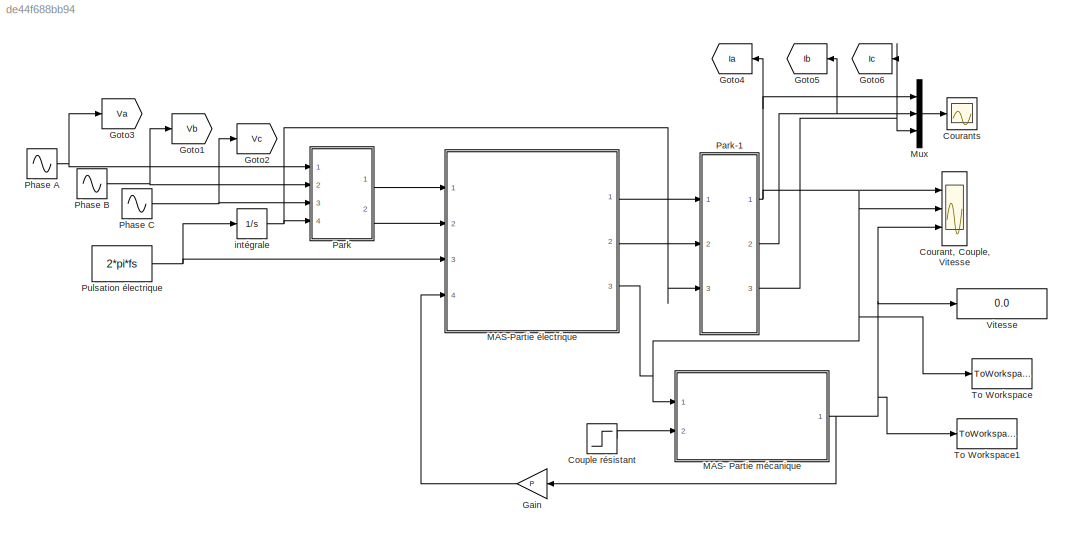
MODEL slx_de44f688bb94
KIND model
CONFIG AbsTol = auto
CONFIG EnableMultiTasking = off
CONFIG FixedStep = 0.0001
CONFIG MaxStep = auto
CONFIG MinStep = auto
CONFIG RelTol = 1e-3
CONFIG SampleTimeConstraint = Unconstrained
CONFIG SolverName = FixedStepAuto
CONFIG StartTime = 0.0
CONFIG StopTime = 1.5
BLOCK [Step] Couple résistant
  After = 20
  SampleTime = 0
BLOCK [Scope] Courant, Couple, Vitesse
  Floating = off
  NumInputPorts = 3
  Ports = [3]
  ScopeSpecificationString = Simulink.scopes.TimeScopeBlockCfg('CurrentConfiguration', extmgr.ConfigurationSet(extmgr.Configuration('Core','General UI',true,'FigureColor',[1 1 1]),extmgr.Configuration('Core','Source UI',true),extmgr.Configuration('Sources','WiredSimulink',true,'DataLoggingVariableName','ScopeData1'),extmgr.Configuration('Visuals','Time Domain',true,'SerializedDisplays',{struct('MinYLimReal','-49.07838','MaxYL...<+3304ch>
BLOCK [Scope] Courants
  Floating = off
  NumInputPorts = 1
  Ports = [1]
  ScopeSpecificationString = Simulink.scopes.TimeScopeBlockCfg('CurrentConfiguration', extmgr.ConfigurationSet(extmgr.Configuration('Core','General UI',true),extmgr.Configuration('Core','Source UI',true),extmgr.Configuration('Sources','WiredSimulink',true),extmgr.Configuration('Visuals','Time Domain',true,'SerializedDisplays',{struct('MinYLimReal','-50.04312','MaxYLimReal','53.36277','YLabelReal','','MinYLimMag','0.00000','Ma...<+1500ch>
BLOCK [Gain] Gain
  Gain = P
BLOCK [Goto] Goto1
  GotoTag = Vb
BLOCK [Goto] Goto2
  GotoTag = Vc
BLOCK [Goto] Goto3
  GotoTag = Va
BLOCK [Goto] Goto4
  GotoTag = Ia
BLOCK [Goto] Goto5
  GotoTag = Ib
BLOCK [Goto] Goto6
  GotoTag = Ic
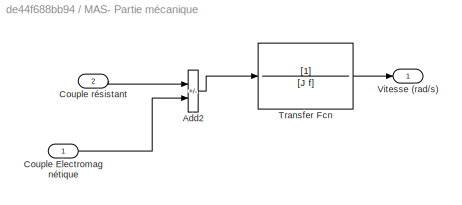
BLOCK [SubSystem] MAS- Partie mécanique
  Ports = [2, 1]
  RequestExecContextInheritance = off
BLOCK [Sum] MAS- Partie mécanique/Add2
  IconShape = rectangular
  Inputs = -+
  Ports = [2, 1]
BLOCK [Inport] MAS- Partie mécanique/Couple Electromagnétique
BLOCK [Inport] MAS- Partie mécanique/Couple résistant
  Port = 2
BLOCK [TransferFcn] MAS- Partie mécanique/Transfer Fcn
  Denominator = [J f]
BLOCK [Outport] MAS- Partie mécanique/Vitesse (rad//s)
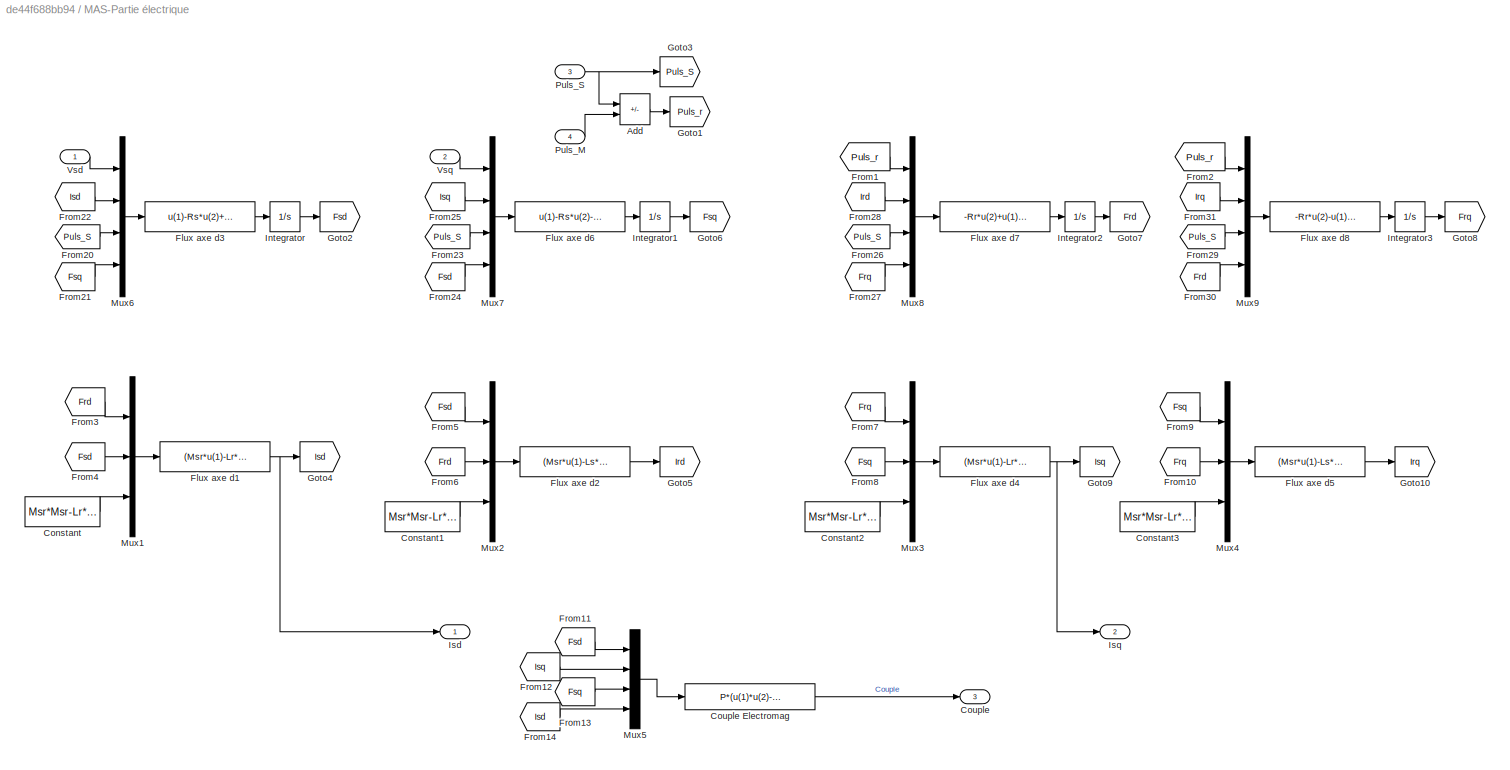
BLOCK [SubSystem] MAS-Partie électrique
  Ports = [4, 3]
  RequestExecContextInheritance = off
BLOCK [Sum] MAS-Partie électrique/Add
  IconShape = rectangular
  Inputs = +-
  Ports = [2, 1]
BLOCK [Constant] MAS-Partie électrique/Constant
  Value = Msr*Msr-Lr*Ls
BLOCK [Constant] MAS-Partie électrique/Constant1
  Value = Msr*Msr-Lr*Ls
BLOCK [Constant] MAS-Partie électrique/Constant2
  Value = Msr*Msr-Lr*Ls
BLOCK [Constant] MAS-Partie électrique/Constant3
  Value = Msr*Msr-Lr*Ls
BLOCK [Outport] MAS-Partie électrique/Couple
  Port = 3
BLOCK [Fcn] MAS-Partie électrique/Couple Electromag
  Expr = P*(u(1)*u(2)-u(3)*u(4))
BLOCK [Fcn] MAS-Partie électrique/Flux axe d1
  Expr = (Msr*u(1)-Lr*u(2))/u(3)
BLOCK [Fcn] MAS-Partie électrique/Flux axe d2
  Expr = (Msr*u(1)-Ls*u(2))/u(3)
BLOCK [Fcn] MAS-Partie électrique/Flux axe d3
  Expr = u(1)-Rs*u(2)+u(3)*u(4)
BLOCK [Fcn] MAS-Partie électrique/Flux axe d4
  Expr = (Msr*u(1)-Lr*u(2))/u(3)
BLOCK [Fcn] MAS-Partie électrique/Flux axe d5
  Expr = (Msr*u(1)-Ls*u(2))/u(3)
BLOCK [Fcn] MAS-Partie électrique/Flux axe d6
  Expr = u(1)-Rs*u(2)-u(3)*u(4)
BLOCK [Fcn] MAS-Partie électrique/Flux axe d7
  Expr = -Rr*u(2)+u(1)*u(4)
BLOCK [Fcn] MAS-Partie électrique/Flux axe d8
  Expr = -Rr*u(2)-u(1)*u(4)
BLOCK [From] MAS-Partie électrique/From1
  GotoTag = Puls_r
BLOCK [From] MAS-Partie électrique/From10
  GotoTag = Frq
BLOCK [From] MAS-Partie électrique/From11
  GotoTag = Fsd
BLOCK [From] MAS-Partie électrique/From12
  GotoTag = Isq
BLOCK [From] MAS-Partie électrique/From13
  GotoTag = Fsq
BLOCK [From] MAS-Partie électrique/From14
  GotoTag = Isd
BLOCK [From] MAS-Partie électrique/From2
  GotoTag = Puls_r
BLOCK [From] MAS-Partie électrique/From20
  GotoTag = Puls_S
  IconDisplay = Signal name
BLOCK [From] MAS-Partie électrique/From21
  GotoTag = Fsq
BLOCK [From] MAS-Partie électrique/From22
  GotoTag = Isd
BLOCK [From] MAS-Partie électrique/From23
  GotoTag = Puls_S
  IconDisplay = Signal name
BLOCK [From] MAS-Partie électrique/From24
  GotoTag = Fsd
BLOCK [From] MAS-Partie électrique/From25
  GotoTag = Isq
BLOCK [From] MAS-Partie électrique/From26
  GotoTag = Puls_S
  IconDisplay = Signal name
BLOCK [From] MAS-Partie électrique/From27
  GotoTag = Frq
BLOCK [From] MAS-Partie électrique/From28
  GotoTag = Ird
BLOCK [From] MAS-Partie électrique/From29
  GotoTag = Puls_S
  IconDisplay = Signal name
BLOCK [From] MAS-Partie électrique/From3
  GotoTag = Frd
BLOCK [From] MAS-Partie électrique/From30
  GotoTag = Frd
BLOCK [From] MAS-Partie électrique/From31
  GotoTag = Irq
BLOCK [From] MAS-Partie électrique/From4
  GotoTag = Fsd
BLOCK [From] MAS-Partie électrique/From5
  GotoTag = Fsd
BLOCK [From] MAS-Partie électrique/From6
  GotoTag = Frd
BLOCK [From] MAS-Partie électrique/From7
  GotoTag = Frq
BLOCK [From] MAS-Partie électrique/From8
  GotoTag = Fsq
BLOCK [From] MAS-Partie électrique/From9
  GotoTag = Fsq
BLOCK [Goto] MAS-Partie électrique/Goto1
  GotoTag = Puls_r
BLOCK [Goto] MAS-Partie électrique/Goto10
  GotoTag = Irq
BLOCK [Goto] MAS-Partie électrique/Goto2
  GotoTag = Fsd
BLOCK [Goto] MAS-Partie électrique/Goto3
  GotoTag = Puls_S
BLOCK [Goto] MAS-Partie électrique/Goto4
  GotoTag = Isd
BLOCK [Goto] MAS-Partie électrique/Goto5
  GotoTag = Ird
BLOCK [Goto] MAS-Partie électrique/Goto6
  GotoTag = Fsq
BLOCK [Goto] MAS-Partie électrique/Goto7
  GotoTag = Frd
BLOCK [Goto] MAS-Partie électrique/Goto8
  GotoTag = Frq
BLOCK [Goto] MAS-Partie électrique/Goto9
  GotoTag = Isq
BLOCK [Integrator] MAS-Partie électrique/Integrator
  Ports = [1, 1]
BLOCK [Integrator] MAS-Partie électrique/Integrator1
  Ports = [1, 1]
BLOCK [Integrator] MAS-Partie électrique/Integrator2
  Ports = [1, 1]
BLOCK [Integrator] MAS-Partie électrique/Integrator3
  Ports = [1, 1]
BLOCK [Outport] MAS-Partie électrique/Isd
BLOCK [Outport] MAS-Partie électrique/Isq
  Port = 2
BLOCK [Mux] MAS-Partie électrique/Mux1
  DisplayOption = bar
  Inputs = 3
  Ports = [3, 1]
BLOCK [Mux] MAS-Partie électrique/Mux2
  DisplayOption = bar
  Inputs = 3
  Ports = [3, 1]
BLOCK [Mux] MAS-Partie électrique/Mux3
  DisplayOption = bar
  Inputs = 3
  Ports = [3, 1]
BLOCK [Mux] MAS-Partie électrique/Mux4
  DisplayOption = bar
  Inputs = 3
  Ports = [3, 1]
BLOCK [Mux] MAS-Partie électrique/Mux5
  DisplayOption = bar
  Ports = [4, 1]
BLOCK [Mux] MAS-Partie électrique/Mux6
  DisplayOption = bar
  Ports = [4, 1]
BLOCK [Mux] MAS-Partie électrique/Mux7
  DisplayOption = bar
  Ports = [4, 1]
BLOCK [Mux] MAS-Partie électrique/Mux8
  DisplayOption = bar
  Ports = [4, 1]
BLOCK [Mux] MAS-Partie électrique/Mux9
  DisplayOption = bar
  Ports = [4, 1]
BLOCK [Inport] MAS-Partie électrique/Puls_M
  Port = 4
BLOCK [Inport] MAS-Partie électrique/Puls_S
  Port = 3
BLOCK [Inport] MAS-Partie électrique/Vsd
BLOCK [Inport] MAS-Partie électrique/Vsq
  Port = 2
BLOCK [Mux] Mux
  DisplayOption = bar
  Inputs = 3
  Ports = [3, 1]
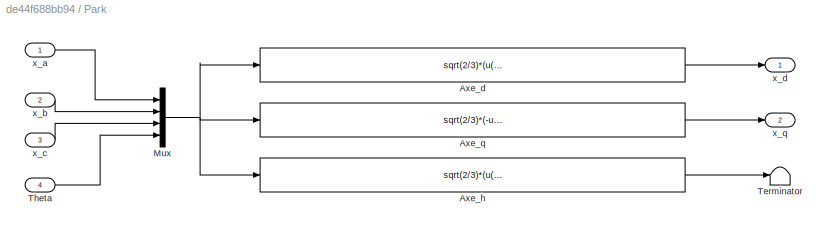
BLOCK [SubSystem] Park
  Ports = [4, 2]
  RequestExecContextInheritance = off
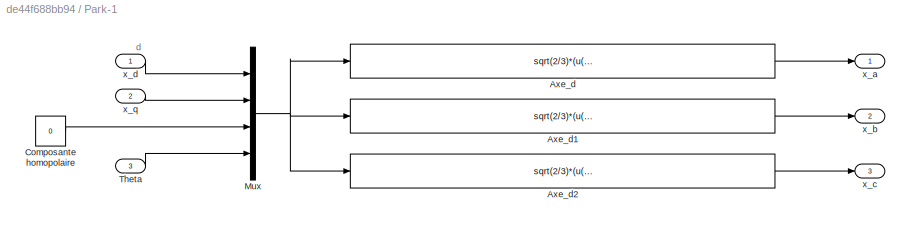
BLOCK [SubSystem] Park-1
  Ports = [3, 3]
  RequestExecContextInheritance = off
BLOCK [Fcn] Park-1/Axe_d
  Expr = sqrt(2/3)*(u(1)*cos(u(4))-u(2)*sin(u(4))+u(3)*(1/sqrt(2)))
BLOCK [Fcn] Park-1/Axe_d1
  Expr = sqrt(2/3)*(u(1)*cos(u(4)-2*pi/3)-u(2)*sin(u(4)-2*pi/3)+u(3)*(1/sqrt(2)))
BLOCK [Fcn] Park-1/Axe_d2
  Expr = sqrt(2/3)*(u(1)*cos(u(4)+2*pi/3)-u(2)*sin(u(4)+2*pi/3)+u(3)*(1/sqrt(2)))
BLOCK [Constant] Park-1/Composante homopolaire
  Value = 0
BLOCK [Mux] Park-1/Mux
  DisplayOption = bar
  Ports = [4, 1]
BLOCK [Inport] Park-1/Theta
  Port = 3
BLOCK [Outport] Park-1/x_a
BLOCK [Outport] Park-1/x_b
  Port = 2
BLOCK [Outport] Park-1/x_c
  Port = 3
BLOCK [Inport] Park-1/x_d
BLOCK [Inport] Park-1/x_q
  Port = 2
BLOCK [Fcn] Park/ Axe_h
  Expr = sqrt(2/3)*(u(1)*(1/sqrt(2))+u(2)*(1/sqrt(2))+u(3)*(1/sqrt(2)))
BLOCK [Fcn] Park/ Axe_q
  Expr = sqrt(2/3)*(-u(1)*sin(u(4))-u(2)*sin(u(4)-2*pi/3)-u(3)*sin(u(4)-4*pi/3))
BLOCK [Fcn] Park/Axe_d
  Expr = sqrt(2/3)*(u(1)*cos(u(4))+u(2)*cos(u(4)-2*pi/3)+u(3)*cos(u(4)-4*pi/3))
BLOCK [Mux] Park/Mux
  DisplayOption = bar
  Ports = [4, 1]
BLOCK [Terminator] Park/Terminator
BLOCK [Inport] Park/Theta
  Port = 4
BLOCK [Inport] Park/x_a
BLOCK [Inport] Park/x_b
  Port = 2
BLOCK [Inport] Park/x_c
  Port = 3
BLOCK [Outport] Park/x_d
BLOCK [Outport] Park/x_q
  Port = 2
BLOCK [Sin] Phase A
  Amplitude = Vmax
  Frequency = 2*pi*fs
  Ports = [0, 1]
  SampleTime = 0
BLOCK [Sin] Phase B
  Amplitude = Vmax
  Frequency = 2*pi*fs
  Phase = -2*pi/3
  Ports = [0, 1]
  SampleTime = 0
BLOCK [Sin] Phase C
  Amplitude = Vmax
  Frequency = 2*pi*fs
  Phase = 2*pi/3
  Ports = [0, 1]
  SampleTime = 0
BLOCK [Constant] Pulsation électrique
  Value = 2*pi*fs
BLOCK [ToWorkspace] To Workspace
  FixptAsFi = on
  MaxDataPoints = inf
  Ports = [1]
  SampleTime = -1
  Save2DSignal = 2-D array (concatenate along first dimension)
  VariableName = Couple
BLOCK [ToWorkspace] To Workspace1
  FixptAsFi = on
  MaxDataPoints = inf
  Ports = [1]
  SampleTime = -1
  Save2DSignal = 2-D array (concatenate along first dimension)
  VariableName = Vitesse
BLOCK [Display] Vitesse
  Decimation = 1
  Ports = [1]
BLOCK [Integrator] intégrale
  Ports = [1, 1]
ANNOTATION Park-1: d
LINE Couple résistant:1 -> MAS- Partie mécanique:2
LINE Gain:1 -> MAS-Partie électrique:4
LINE MAS- Partie mécanique/Add2:1 -> MAS- Partie mécanique/Transfer Fcn:1
LINE MAS- Partie mécanique/Couple Electromagnétique:1 -> MAS- Partie mécanique/Add2:2
LINE MAS- Partie mécanique/Couple résistant:1 -> MAS- Partie mécanique/Add2:1
LINE MAS- Partie mécanique/Transfer Fcn:1 -> MAS- Partie mécanique/Vitesse (rad//s):1
NET MAS- Partie mécanique:1 -> Courant, Couple, Vitesse:3, Gain:1, To Workspace1:1, Vitesse:1
LINE MAS-Partie électrique/Add:1 -> MAS-Partie électrique/Goto1:1
LINE MAS-Partie électrique/Constant1:1 -> MAS-Partie électrique/Mux2:3
LINE MAS-Partie électrique/Constant2:1 -> MAS-Partie électrique/Mux3:3
LINE MAS-Partie électrique/Constant3:1 -> MAS-Partie électrique/Mux4:3
LINE MAS-Partie électrique/Constant:1 -> MAS-Partie électrique/Mux1:3
LINE MAS-Partie électrique/Couple Electromag:1 -> MAS-Partie électrique/Couple:1
NET MAS-Partie électrique/Flux axe d1:1 -> MAS-Partie électrique/Goto4:1, MAS-Partie électrique/Isd:1
LINE MAS-Partie électrique/Flux axe d2:1 -> MAS-Partie électrique/Goto5:1
LINE MAS-Partie électrique/Flux axe d3:1 -> MAS-Partie électrique/Integrator:1
NET MAS-Partie électrique/Flux axe d4:1 -> MAS-Partie électrique/Goto9:1, MAS-Partie électrique/Isq:1
LINE MAS-Partie électrique/Flux axe d5:1 -> MAS-Partie électrique/Goto10:1
LINE MAS-Partie électrique/Flux axe d6:1 -> MAS-Partie électrique/Integrator1:1
LINE MAS-Partie électrique/Flux axe d7:1 -> MAS-Partie électrique/Integrator2:1
LINE MAS-Partie électrique/Flux axe d8:1 -> MAS-Partie électrique/Integrator3:1
LINE MAS-Partie électrique/From10:1 -> MAS-Partie électrique/Mux4:2
LINE MAS-Partie électrique/From11:1 -> MAS-Partie électrique/Mux5:1
LINE MAS-Partie électrique/From12:1 -> MAS-Partie électrique/Mux5:2
LINE MAS-Partie électrique/From13:1 -> MAS-Partie électrique/Mux5:3
LINE MAS-Partie électrique/From14:1 -> MAS-Partie électrique/Mux5:4
LINE MAS-Partie électrique/From1:1 -> MAS-Partie électrique/Mux8:1
LINE MAS-Partie électrique/From20:1 -> MAS-Partie électrique/Mux6:3
LINE MAS-Partie électrique/From21:1 -> MAS-Partie électrique/Mux6:4
LINE MAS-Partie électrique/From22:1 -> MAS-Partie électrique/Mux6:2
LINE MAS-Partie électrique/From23:1 -> MAS-Partie électrique/Mux7:3
LINE MAS-Partie électrique/From24:1 -> MAS-Partie électrique/Mux7:4
LINE MAS-Partie électrique/From25:1 -> MAS-Partie électrique/Mux7:2
LINE MAS-Partie électrique/From26:1 -> MAS-Partie électrique/Mux8:3
LINE MAS-Partie électrique/From27:1 -> MAS-Partie électrique/Mux8:4
LINE MAS-Partie électrique/From28:1 -> MAS-Partie électrique/Mux8:2
LINE MAS-Partie électrique/From29:1 -> MAS-Partie électrique/Mux9:3
LINE MAS-Partie électrique/From2:1 -> MAS-Partie électrique/Mux9:1
LINE MAS-Partie électrique/From30:1 -> MAS-Partie électrique/Mux9:4
LINE MAS-Partie électrique/From31:1 -> MAS-Partie électrique/Mux9:2
LINE MAS-Partie électrique/From3:1 -> MAS-Partie électrique/Mux1:1
LINE MAS-Partie électrique/From4:1 -> MAS-Partie électrique/Mux1:2
LINE MAS-Partie électrique/From5:1 -> MAS-Partie électrique/Mux2:1
LINE MAS-Partie électrique/From6:1 -> MAS-Partie électrique/Mux2:2
LINE MAS-Partie électrique/From7:1 -> MAS-Partie électrique/Mux3:1
LINE MAS-Partie électrique/From8:1 -> MAS-Partie électrique/Mux3:2
LINE MAS-Partie électrique/From9:1 -> MAS-Partie électrique/Mux4:1
LINE MAS-Partie électrique/Integrator1:1 -> MAS-Partie électrique/Goto6:1
LINE MAS-Partie électrique/Integrator2:1 -> MAS-Partie électrique/Goto7:1
LINE MAS-Partie électrique/Integrator3:1 -> MAS-Partie électrique/Goto8:1
LINE MAS-Partie électrique/Integrator:1 -> MAS-Partie électrique/Goto2:1
LINE MAS-Partie électrique/Mux1:1 -> MAS-Partie électrique/Flux axe d1:1
LINE MAS-Partie électrique/Mux2:1 -> MAS-Partie électrique/Flux axe d2:1
LINE MAS-Partie électrique/Mux3:1 -> MAS-Partie électrique/Flux axe d4:1
LINE MAS-Partie électrique/Mux4:1 -> MAS-Partie électrique/Flux axe d5:1
LINE MAS-Partie électrique/Mux5:1 -> MAS-Partie électrique/Couple Electromag:1
LINE MAS-Partie électrique/Mux6:1 -> MAS-Partie électrique/Flux axe d3:1
LINE MAS-Partie électrique/Mux7:1 -> MAS-Partie électrique/Flux axe d6:1
LINE MAS-Partie électrique/Mux8:1 -> MAS-Partie électrique/Flux axe d7:1
LINE MAS-Partie électrique/Mux9:1 -> MAS-Partie électrique/Flux axe d8:1
LINE MAS-Partie électrique/Puls_M:1 -> MAS-Partie électrique/Add:2
NET MAS-Partie électrique/Puls_S:1 -> MAS-Partie électrique/Add:1, MAS-Partie électrique/Goto3:1
LINE MAS-Partie électrique/Vsd:1 -> MAS-Partie électrique/Mux6:1
LINE MAS-Partie électrique/Vsq:1 -> MAS-Partie électrique/Mux7:1
LINE MAS-Partie électrique:1 -> Park-1:1
LINE MAS-Partie électrique:2 -> Park-1:2
NET MAS-Partie électrique:3 -> Courant, Couple, Vitesse:2, MAS- Partie mécanique:1, To Workspace:1
LINE Mux:1 -> Courants:1
LINE Park-1/Axe_d1:1 -> Park-1/x_b:1
LINE Park-1/Axe_d2:1 -> Park-1/x_c:1
LINE Park-1/Axe_d:1 -> Park-1/x_a:1
LINE Park-1/Composante homopolaire:1 -> Park-1/Mux:3
NET Park-1/Mux:1 -> Park-1/Axe_d1:1, Park-1/Axe_d2:1, Park-1/Axe_d:1
LINE Park-1/Theta:1 -> Park-1/Mux:4
LINE Park-1/x_d:1 -> Park-1/Mux:1
LINE Park-1/x_q:1 -> Park-1/Mux:2
NET Park-1:1 -> Courant, Couple, Vitesse:1, Goto4:1, Mux:1
NET Park-1:2 -> Goto5:1, Mux:2
NET Park-1:3 -> Goto6:1, Mux:3
LINE Park/ Axe_h:1 -> Park/Terminator:1
LINE Park/ Axe_q:1 -> Park/x_q:1
LINE Park/Axe_d:1 -> Park/x_d:1
NET Park/Mux:1 -> Park/ Axe_h:1, Park/ Axe_q:1, Park/Axe_d:1
LINE Park/Theta:1 -> Park/Mux:4
LINE Park/x_a:1 -> Park/Mux:1
LINE Park/x_b:1 -> Park/Mux:2
LINE Park/x_c:1 -> Park/Mux:3
LINE Park:1 -> MAS-Partie électrique:1
LINE Park:2 -> MAS-Partie électrique:2
NET Phase A:1 -> Goto3:1, Park:1
NET Phase B:1 -> Goto1:1, Park:2
NET Phase C:1 -> Goto2:1, Park:3
NET Pulsation électrique:1 -> MAS-Partie électrique:3, intégrale:1
NET intégrale:1 -> Park-1:3, Park:4
note: NET lines group one-source signal fan-out (src -> all destinations, sorted); 1:1 wires keep LINE
